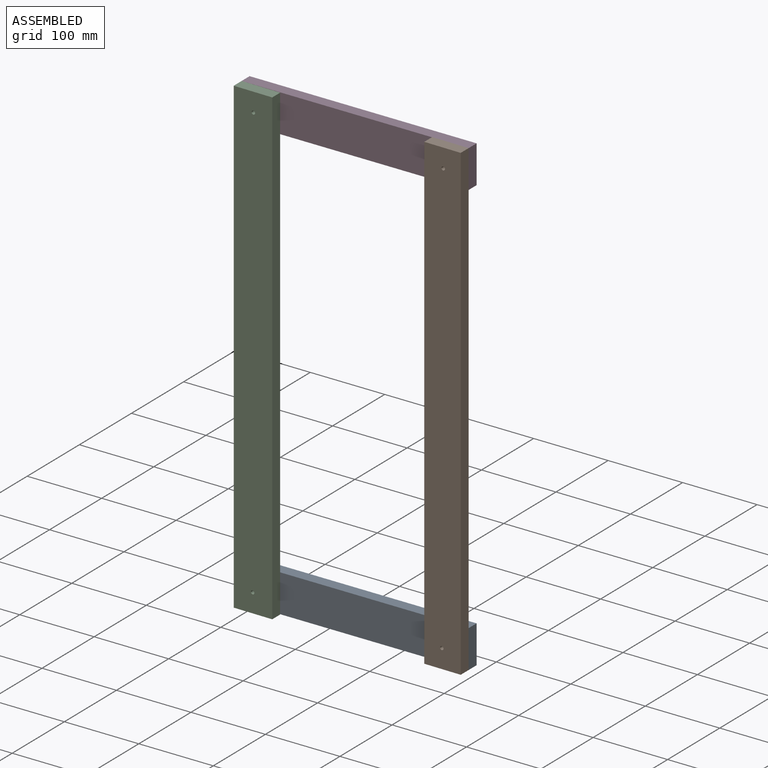
[diagram: assembled view]
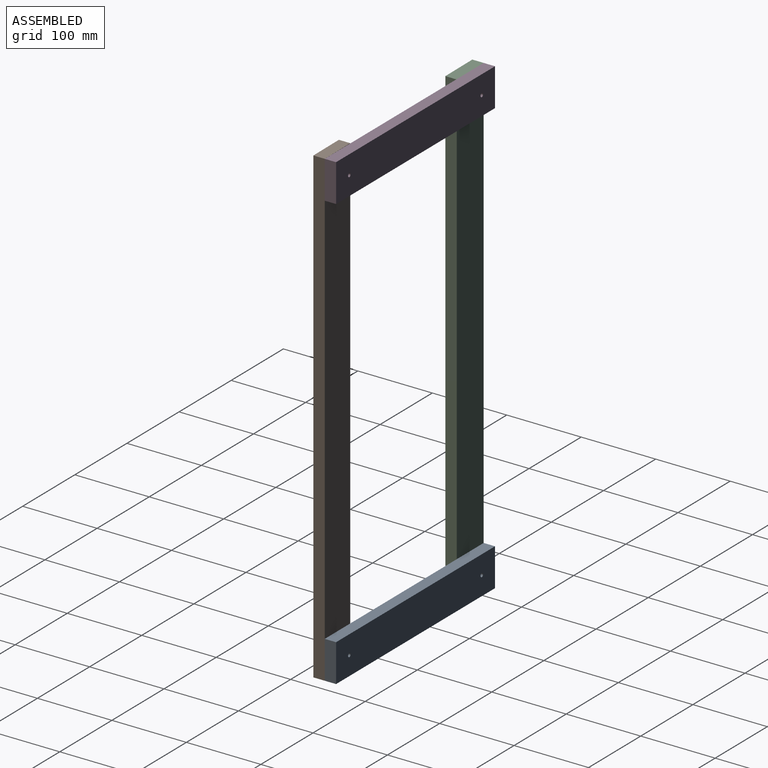
[diagram: assembled view, second angle]
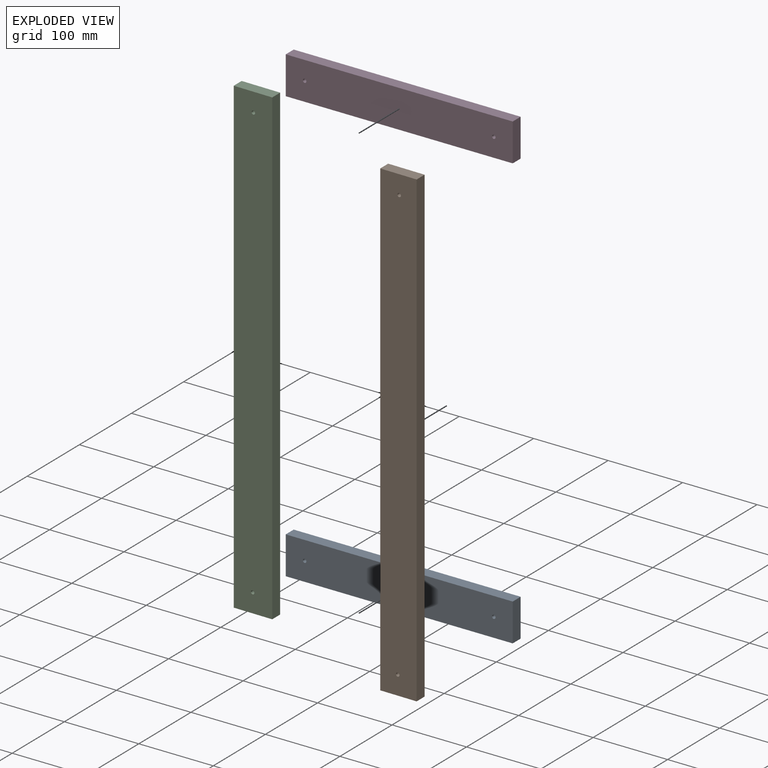
[diagram: exploded view]
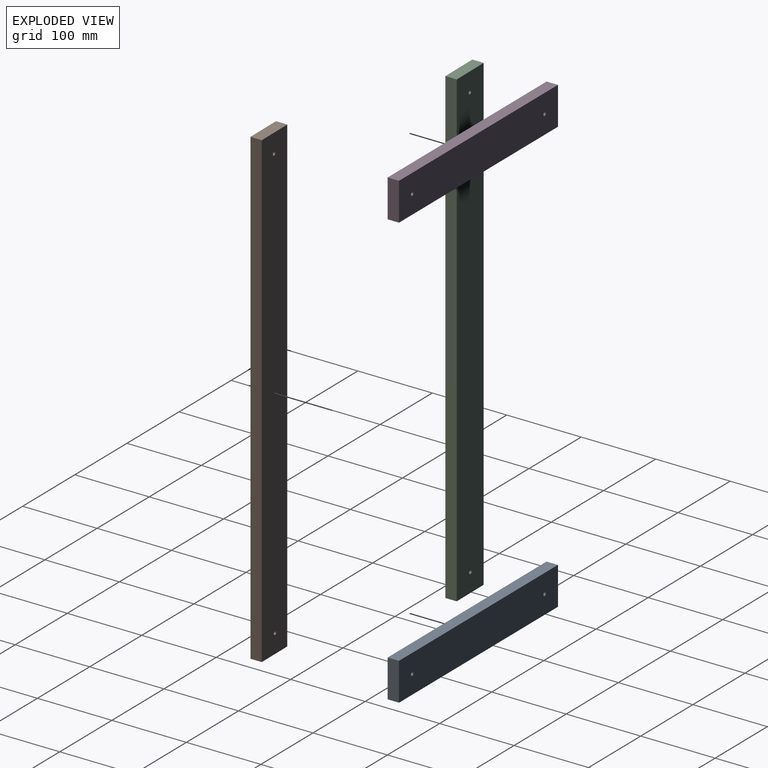
[diagram: exploded view, second angle]
ASSEMBLY  parts=4 mates=4
PART A: 8 faces, bbox 304.8x15.2x50.8 mm
  f0: plane 50.8x15.24mm, normal (-1,0,0), area 774.2mm2, adj f1,f3,f4,f5
  f1: plane 304.8x15.24mm, normal (0,0,-1), area 4645.2mm2, adj f0,f2,f4,f5
  f2: plane 50.8x15.24mm, normal (1,0,0), area 774.2mm2, adj f1,f3,f4,f5
  f3: plane 304.8x15.24mm, normal (0,0,1), area 4645.2mm2, adj f0,f2,f4,f5
  f4: plane 304.8x50.8mm, normal (0,-1,0), area 15448.2mm2, adj f0,f1,f2,f3,f6,f7
  f5: plane 304.8x50.8mm, normal (0,1,0), area 15448.2mm2, adj f0,f1,f2,f3,f6,f7
  f6: cylinder r=2.38mm len=15.24mm, axis (0,1,0), area 228mm2, adj f4,f5
  f7: cylinder r=2.38mm len=15.24mm, axis (0,1,0), area 228mm2, adj f4,f5
PART B: 8 faces, bbox 48.9x15.2x633.8 mm
  f0: plane 633.4x15.24mm, normal (1,0,0), area 9653mm2, adj f1,f3,f4,f5
  f1: plane 48.89x15.24mm, normal (0.01,0,1), area 745.1mm2, adj f0,f2,f4,f5
  f2: plane 633.4x15.24mm, normal (-1,0,0), area 9653mm2, adj f1,f3,f4,f5
  f3: plane 48.89x15.24mm, normal (-0.01,0,-1), area 745.1mm2, adj f0,f2,f4,f5
  f4: plane 633.75x48.89mm, normal (0,-1,0), area 30931mm2, adj f0,f1,f2,f3,f6,f7
  f5: plane 633.75x48.89mm, normal (0,1,0), area 30931mm2, adj f0,f1,f2,f3,f6,f7
  f6: cylinder r=2.38mm len=15.24mm, axis (0,1,0), area 228mm2, adj f4,f5
  f7: cylinder r=2.38mm len=15.24mm, axis (0,1,0), area 228mm2, adj f4,f5
PART C: 8 faces, bbox 51.7x15.2x633.7 mm
  f0: plane 633.38x15.24mm, normal (1,0,0), area 9652.7mm2, adj f1,f3,f4,f5
  f1: plane 51.73x15.24mm, normal (0.01,0,1), area 788.3mm2, adj f0,f2,f4,f5
  f2: plane 633.4x15.24mm, normal (-1,0,0), area 9653mm2, adj f1,f3,f4,f5
  f3: plane 51.73x15.24mm, normal (-0.01,0,-1), area 788.3mm2, adj f0,f2,f4,f5
  f4: plane 633.75x51.73mm, normal (0,-1,0), area 32727.3mm2, adj f0,f1,f2,f3,f6,f7
  f5: plane 633.75x51.73mm, normal (0,1,0), area 32727.3mm2, adj f0,f1,f2,f3,f6,f7
  f6: cylinder r=2.38mm len=15.24mm, axis (0,1,0), area 228mm2, adj f4,f5
  f7: cylinder r=2.38mm len=15.24mm, axis (0,1,0), area 228mm2, adj f4,f5
PART D: 8 faces, bbox 304.8x15.2x50.8 mm
  f0: plane 50.8x15.24mm, normal (-1,0,0), area 774.2mm2, adj f1,f3,f4,f5
  f1: plane 304.8x15.24mm, normal (0,0,-1), area 4645.2mm2, adj f0,f2,f4,f5
  f2: plane 50.8x15.24mm, normal (1,0,0), area 774.2mm2, adj f1,f3,f4,f5
  f3: plane 304.8x15.24mm, normal (0,0,1), area 4645.2mm2, adj f0,f2,f4,f5
  f4: plane 304.8x50.8mm, normal (0,-1,0), area 15448.2mm2, adj f0,f1,f2,f3,f6,f7
  f5: plane 304.8x50.8mm, normal (0,1,0), area 15448.2mm2, adj f0,f1,f2,f3,f6,f7
  f6: cylinder r=2.38mm len=15.24mm, axis (0,1,0), area 228mm2, adj f4,f5
  f7: cylinder r=2.38mm len=15.24mm, axis (0,1,0), area 228mm2, adj f4,f5
PLACE A t=(-177.26,-138.59,-250.15)mm
PLACE B t=(-41.45,-153.83,41.2)mm
PLACE C t=(-226.98,-153.83,40.84)mm
PLACE D t=(-304.26,-138.59,-80.23)mm
MATE fastened D.f4 <-> B.f5  axis (0,-1,0) through (0.54,-153.83,357.85)mm
MATE fastened D.f0 <-> C.f2  axis (1,0,0) through (-304.26,-153.83,357.85)mm
MATE planar D.f4 <-> C.f5  axis (0,-1,0) through (-151.86,-153.83,332.45)mm
MATE fastened A.f4 <-> C.f5  axis (0,1,0) through (-304.26,-153.83,-275.55)mm
